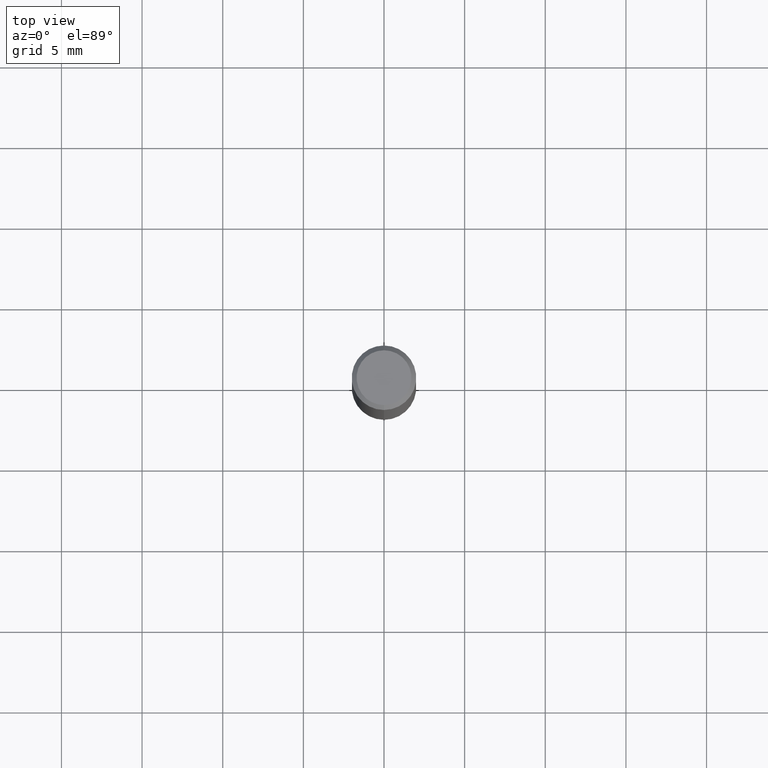
[diagram: clean part render]
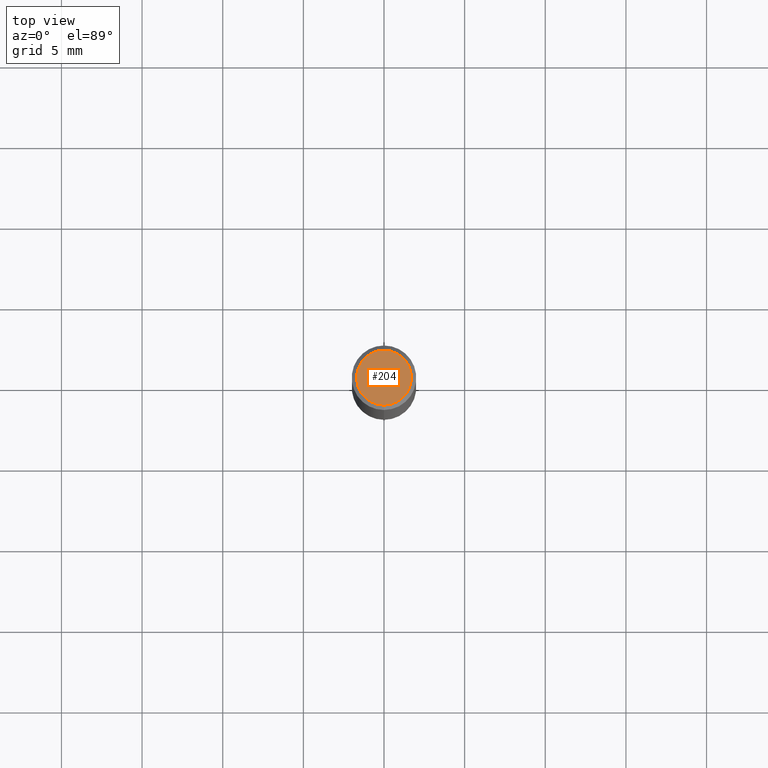
[diagram: same view with one face highlighted and labeled with its STEP entity id]
A machine part, top view. The second image highlights one B-rep face of the part: STEP entity #204.
In plain terms, the highlighted planar face has unit normal (-0, 0, 1).
Its self-contained STEP definition (entity closure, byte-faithful):
#134=VERTEX_POINT('',#283);
#168=EDGE_CURVE('',#134,#200,#322,.T.);
#194=EDGE_CURVE('',#200,#134,#348,.T.);
#200=VERTEX_POINT('',#354);
#204=ADVANCED_FACE('',(#358),#359,.T.);
#283=CARTESIAN_POINT('',(2.08183080149804E-016,-1.7,0.0));
#322=CIRCLE('',#489,1.7);
#348=CIRCLE('',#528,1.7);
#354=CARTESIAN_POINT('',(0.0,1.7,0.0));
#358=FACE_OUTER_BOUND('',#542,.T.);
#359=PLANE('',#543);
#489=AXIS2_PLACEMENT_3D('',#682,#683,#684);
#528=AXIS2_PLACEMENT_3D('',#706,#707,#708);
#542=EDGE_LOOP('',(#712,#713));
#543=AXIS2_PLACEMENT_3D('',#714,#715,#716);
#682=CARTESIAN_POINT('',(0.0,0.0,0.0));
#683=DIRECTION('',(0.0,0.0,-1.0));
#684=DIRECTION('',(0.0,1.0,0.0));
#706=CARTESIAN_POINT('',(0.0,0.0,0.0));
#707=DIRECTION('',(0.0,0.0,-1.0));
#708=DIRECTION('',(0.0,1.0,0.0));
#712=ORIENTED_EDGE('',*,*,#194,.F.);
#713=ORIENTED_EDGE('',*,*,#168,.F.);
#714=CARTESIAN_POINT('',(0.0,0.85,0.0));
#715=DIRECTION('',(-0.0,0.0,1.0));
#716=DIRECTION('',(0.0,-1.0,0.0));